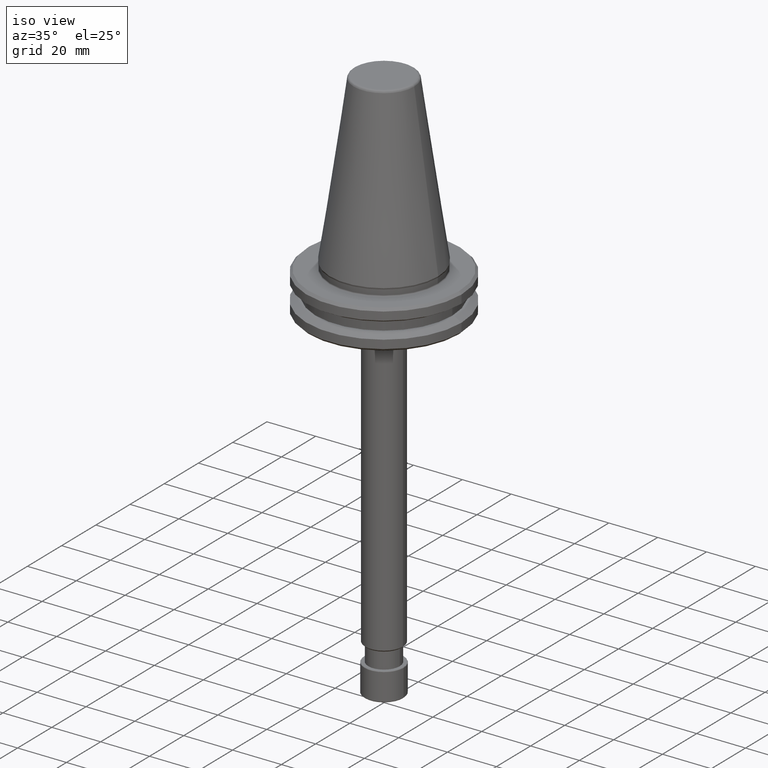
[diagram: clean part render]
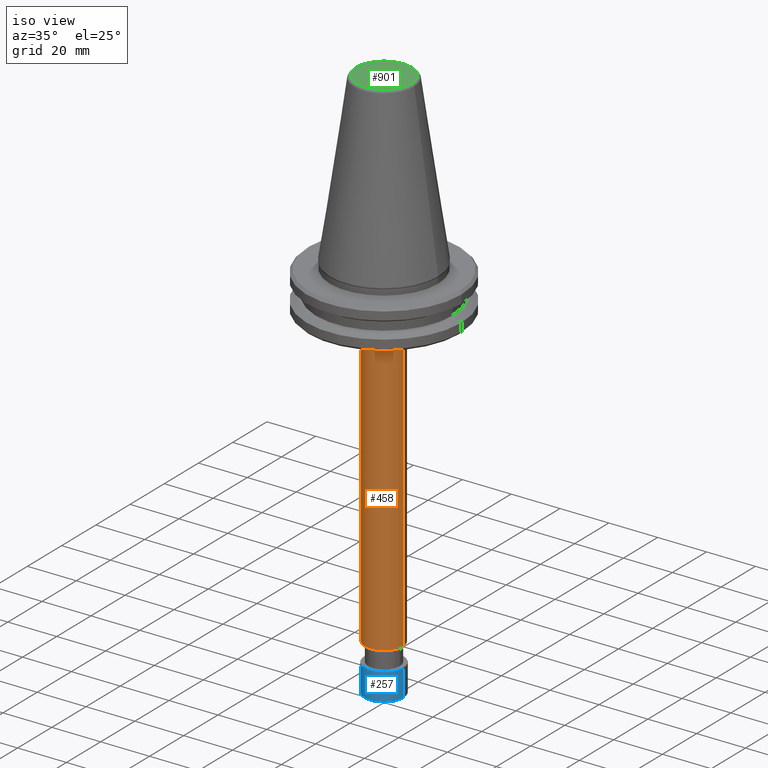
[diagram: same view with three faces highlighted in distinct colors, each labeled with its STEP entity id]
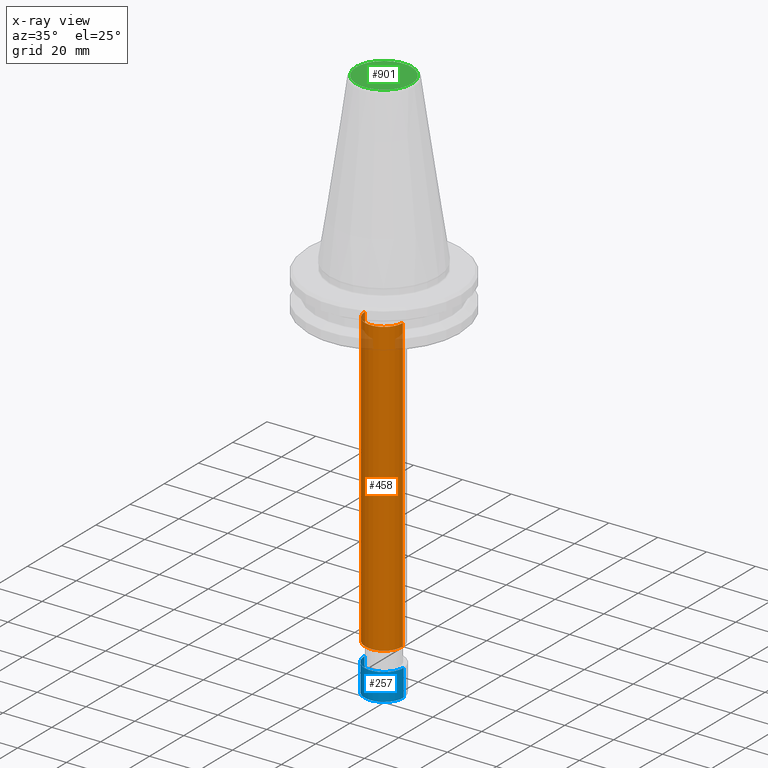
[diagram: x-ray of the same camera — body ghosted, the three highlighted faces saturated]
A machine part, iso view with three faces highlighted in distinct colors.
The next image is the same camera in x-ray (body ghosted, the three faces saturated) — at least one of them is partly hidden behind the body in this view.
Their STEP definitions:

[orange] entity #458 — the highlighted cylindrical surface (edge-blend (fillet) strip) has radius 7.75 mm, axis along (-0, -0, 1).
#7 = VECTOR ( 'NONE', #1089, 1000.000000000000000 ) ;
#47 = EDGE_CURVE ( 'NONE', #843, #616, #285, .T. ) ;
#66 = DIRECTION ( 'NONE',  ( 1.000000000000000000, 0.0000000000000000000, 0.0000000000000000000 ) ) ;
#141 = AXIS2_PLACEMENT_3D ( 'NONE', #1078, #414, #66 ) ;
#163 = DIRECTION ( 'NONE',  ( -0.0000000000000000000, -0.0000000000000000000, 1.000000000000000000 ) ) ;
#164 = VERTEX_POINT ( 'NONE', #564 ) ;
#180 = ORIENTED_EDGE ( 'NONE', *, *, #785, .F. ) ;
#223 = ORIENTED_EDGE ( 'NONE', *, *, #1150, .T. ) ;
#279 = EDGE_CURVE ( 'NONE', #843, #164, #1085, .T. ) ;
#285 = CIRCLE ( 'NONE', #141, 7.750000000000034600 ) ;
#384 = CARTESIAN_POINT ( 'NONE',  ( -7.750000000000034600, 9.491012693392029200E-016, 223.7483139439238500 ) ) ;
#394 = VECTOR ( 'NONE', #163, 1000.000000000000000 ) ;
#413 = AXIS2_PLACEMENT_3D ( 'NONE', #1035, #1183, #530 ) ;
#414 = DIRECTION ( 'NONE',  ( -0.0000000000000000000, -0.0000000000000000000, 1.000000000000000000 ) ) ;
#458 = ADVANCED_FACE ( 'NONE', ( #1036 ), #950, .T. ) ;
#487 = AXIS2_PLACEMENT_3D ( 'NONE', #575, #900, #762 ) ;
#490 = LINE ( 'NONE', #532, #7 ) ;
#530 = DIRECTION ( 'NONE',  ( 1.000000000000000000, 0.0000000000000000000, 0.0000000000000000000 ) ) ;
#532 = CARTESIAN_POINT ( 'NONE',  ( 7.750000000000034600, 0.0000000000000000000, 223.7483139439238500 ) ) ;
#554 = ORIENTED_EDGE ( 'NONE', *, *, #47, .T. ) ;
#564 = CARTESIAN_POINT ( 'NONE',  ( -7.750000000000034600, 9.491012693392029200E-016, 72.29999999999947100 ) ) ;
#575 = CARTESIAN_POINT ( 'NONE',  ( 0.0000000000000000000, 0.0000000000000000000, 223.7483139439238500 ) ) ;
#616 = VERTEX_POINT ( 'NONE', #864 ) ;
#708 = CARTESIAN_POINT ( 'NONE',  ( -7.750000000000034600, 9.491012693392027200E-016, -47.50000000000009900 ) ) ;
#762 = DIRECTION ( 'NONE',  ( 1.000000000000000000, 0.0000000000000000000, 0.0000000000000000000 ) ) ;
#778 = EDGE_LOOP ( 'NONE', ( #916, #554, #223, #180 ) ) ;
#785 = EDGE_CURVE ( 'NONE', #164, #1166, #934, .T. ) ;
#843 = VERTEX_POINT ( 'NONE', #708 ) ;
#864 = CARTESIAN_POINT ( 'NONE',  ( 7.750000000000034600, 0.0000000000000000000, -47.50000000000009900 ) ) ;
#900 = DIRECTION ( 'NONE',  ( -0.0000000000000000000, -0.0000000000000000000, 1.000000000000000000 ) ) ;
#916 = ORIENTED_EDGE ( 'NONE', *, *, #279, .F. ) ;
#934 = CIRCLE ( 'NONE', #413, 7.750000000000034600 ) ;
#950 = CYLINDRICAL_SURFACE ( 'NONE', #487, 7.750000000000034600 ) ;
#985 = CARTESIAN_POINT ( 'NONE',  ( 7.750000000000034600, 0.0000000000000000000, 72.29999999999947100 ) ) ;
#1035 = CARTESIAN_POINT ( 'NONE',  ( 0.0000000000000000000, 0.0000000000000000000, 72.29999999999947100 ) ) ;
#1036 = FACE_OUTER_BOUND ( 'NONE', #778, .T. ) ;
#1078 = CARTESIAN_POINT ( 'NONE',  ( 0.0000000000000000000, 0.0000000000000000000, -47.50000000000009900 ) ) ;
#1085 = LINE ( 'NONE', #384, #394 ) ;
#1089 = DIRECTION ( 'NONE',  ( -0.0000000000000000000, -0.0000000000000000000, 1.000000000000000000 ) ) ;
#1150 = EDGE_CURVE ( 'NONE', #616, #1166, #490, .T. ) ;
#1166 = VERTEX_POINT ( 'NONE', #985 ) ;
#1183 = DIRECTION ( 'NONE',  ( -0.0000000000000000000, -0.0000000000000000000, 1.000000000000000000 ) ) ;

[blue] entity #257 — the highlighted cylindrical surface (edge-blend (fillet) strip) has radius 8 mm, axis along (-0, -0, 1).
#14 = EDGE_CURVE ( 'NONE', #895, #837, #716, .T. ) ;
#35 = EDGE_CURVE ( 'NONE', #895, #877, #1110, .T. ) ;
#98 = DIRECTION ( 'NONE',  ( 1.000000000000000000, 0.0000000000000000000, 0.0000000000000000000 ) ) ;
#113 = DIRECTION ( 'NONE',  ( -0.0000000000000000000, -0.0000000000000000000, 1.000000000000000000 ) ) ;
#130 = EDGE_CURVE ( 'NONE', #837, #467, #722, .T. ) ;
#132 = CARTESIAN_POINT ( 'NONE',  ( 8.000000000000007100, 0.0000000000000000000, -66.33451327430029200 ) ) ;
#188 = DIRECTION ( 'NONE',  ( -0.0000000000000000000, -0.0000000000000000000, 1.000000000000000000 ) ) ;
#216 = AXIS2_PLACEMENT_3D ( 'NONE', #906, #388, #254 ) ;
#250 = LINE ( 'NONE', #421, #761 ) ;
#254 = DIRECTION ( 'NONE',  ( 1.000000000000000000, 0.0000000000000000000, 0.0000000000000000000 ) ) ;
#257 = ADVANCED_FACE ( 'NONE', ( #1176 ), #1223, .T. ) ;
#290 = CARTESIAN_POINT ( 'NONE',  ( -8.000000000000007100, 9.797174393178833500E-016, -66.33451327430029200 ) ) ;
#312 = ORIENTED_EDGE ( 'NONE', *, *, #1261, .T. ) ;
#388 = DIRECTION ( 'NONE',  ( -0.0000000000000000000, -0.0000000000000000000, 1.000000000000000000 ) ) ;
#421 = CARTESIAN_POINT ( 'NONE',  ( 8.000000000000007100, 0.0000000000000000000, 185.3618079967774900 ) ) ;
#467 = VERTEX_POINT ( 'NONE', #1137 ) ;
#615 = CARTESIAN_POINT ( 'NONE',  ( -8.000000000000007100, 9.797174393178835500E-016, 185.3618079967774900 ) ) ;
#652 = AXIS2_PLACEMENT_3D ( 'NONE', #746, #113, #98 ) ;
#667 = CARTESIAN_POINT ( 'NONE',  ( -8.000000000000007100, 9.797174393178835500E-016, -55.28931810590026400 ) ) ;
#716 = LINE ( 'NONE', #615, #977 ) ;
#722 = CIRCLE ( 'NONE', #216, 8.000000000000007100 ) ;
#746 = CARTESIAN_POINT ( 'NONE',  ( 0.0000000000000000000, 0.0000000000000000000, 185.3618079967774900 ) ) ;
#761 = VECTOR ( 'NONE', #188, 1000.000000000000000 ) ;
#812 = DIRECTION ( 'NONE',  ( -0.0000000000000000000, -0.0000000000000000000, 1.000000000000000000 ) ) ;
#834 = DIRECTION ( 'NONE',  ( 1.000000000000000000, 0.0000000000000000000, 0.0000000000000000000 ) ) ;
#837 = VERTEX_POINT ( 'NONE', #667 ) ;
#841 = ORIENTED_EDGE ( 'NONE', *, *, #35, .T. ) ;
#877 = VERTEX_POINT ( 'NONE', #132 ) ;
#895 = VERTEX_POINT ( 'NONE', #290 ) ;
#906 = CARTESIAN_POINT ( 'NONE',  ( 0.0000000000000000000, 0.0000000000000000000, -55.28931810590026400 ) ) ;
#977 = VECTOR ( 'NONE', #1046, 1000.000000000000000 ) ;
#993 = EDGE_LOOP ( 'NONE', ( #1135, #841, #312, #1201 ) ) ;
#1003 = AXIS2_PLACEMENT_3D ( 'NONE', #1093, #812, #834 ) ;
#1046 = DIRECTION ( 'NONE',  ( -0.0000000000000000000, -0.0000000000000000000, 1.000000000000000000 ) ) ;
#1093 = CARTESIAN_POINT ( 'NONE',  ( 0.0000000000000000000, 0.0000000000000000000, -66.33451327430029200 ) ) ;
#1110 = CIRCLE ( 'NONE', #1003, 8.000000000000007100 ) ;
#1135 = ORIENTED_EDGE ( 'NONE', *, *, #14, .F. ) ;
#1137 = CARTESIAN_POINT ( 'NONE',  ( 8.000000000000007100, 0.0000000000000000000, -55.28931810590026400 ) ) ;
#1176 = FACE_OUTER_BOUND ( 'NONE', #993, .T. ) ;
#1201 = ORIENTED_EDGE ( 'NONE', *, *, #130, .F. ) ;
#1223 = CYLINDRICAL_SURFACE ( 'NONE', #652, 8.000000000000007100 ) ;
#1261 = EDGE_CURVE ( 'NONE', #877, #467, #250, .T. ) ;

[green] entity #901 — the highlighted planar face has unit normal (0, 0, -1).
#23 = AXIS2_PLACEMENT_3D ( 'NONE', #976, #1248, #844 ) ;
#28 = VERTEX_POINT ( 'NONE', #105 ) ;
#85 = AXIS2_PLACEMENT_3D ( 'NONE', #684, #231, #1082 ) ;
#105 = CARTESIAN_POINT ( 'NONE',  ( 11.38516261637312300, 0.0000000000000000000, 161.7999999999998100 ) ) ;
#231 = DIRECTION ( 'NONE',  ( -0.0000000000000000000, -0.0000000000000000000, 1.000000000000000000 ) ) ;
#232 = CARTESIAN_POINT ( 'NONE',  ( 0.0000000000000000000, 0.0000000000000000000, 161.7999999999998100 ) ) ;
#259 = EDGE_CURVE ( 'NONE', #28, #688, #361, .T. ) ;
#361 = CIRCLE ( 'NONE', #1234, 11.38516261637312300 ) ;
#457 = DIRECTION ( 'NONE',  ( -0.0000000000000000000, -0.0000000000000000000, 1.000000000000000000 ) ) ;
#485 = ORIENTED_EDGE ( 'NONE', *, *, #1038, .T. ) ;
#491 = FACE_OUTER_BOUND ( 'NONE', #865, .T. ) ;
#604 = ORIENTED_EDGE ( 'NONE', *, *, #259, .T. ) ;
#623 = PLANE ( 'NONE',  #23 ) ;
#684 = CARTESIAN_POINT ( 'NONE',  ( 0.0000000000000000000, 0.0000000000000000000, 161.7999999999998100 ) ) ;
#688 = VERTEX_POINT ( 'NONE', #933 ) ;
#712 = CIRCLE ( 'NONE', #85, 11.38516261637312300 ) ;
#844 = DIRECTION ( 'NONE',  ( -1.000000000000000000, 0.0000000000000000000, -0.0000000000000000000 ) ) ;
#865 = EDGE_LOOP ( 'NONE', ( #604, #485 ) ) ;
#901 = ADVANCED_FACE ( 'NONE', ( #491 ), #623, .F. ) ;
#933 = CARTESIAN_POINT ( 'NONE',  ( -11.38516261637312300, 1.454871703576221600E-015, 161.7999999999998100 ) ) ;
#976 = CARTESIAN_POINT ( 'NONE',  ( 0.0000000000000000000, 11.38516261637312300, 161.7999999999998400 ) ) ;
#1038 = EDGE_CURVE ( 'NONE', #688, #28, #712, .T. ) ;
#1082 = DIRECTION ( 'NONE',  ( 1.000000000000000000, 0.0000000000000000000, 0.0000000000000000000 ) ) ;
#1199 = DIRECTION ( 'NONE',  ( 1.000000000000000000, 0.0000000000000000000, 0.0000000000000000000 ) ) ;
#1234 = AXIS2_PLACEMENT_3D ( 'NONE', #232, #457, #1199 ) ;
#1248 = DIRECTION ( 'NONE',  ( 0.0000000000000000000, 0.0000000000000000000, -1.000000000000000000 ) ) ;